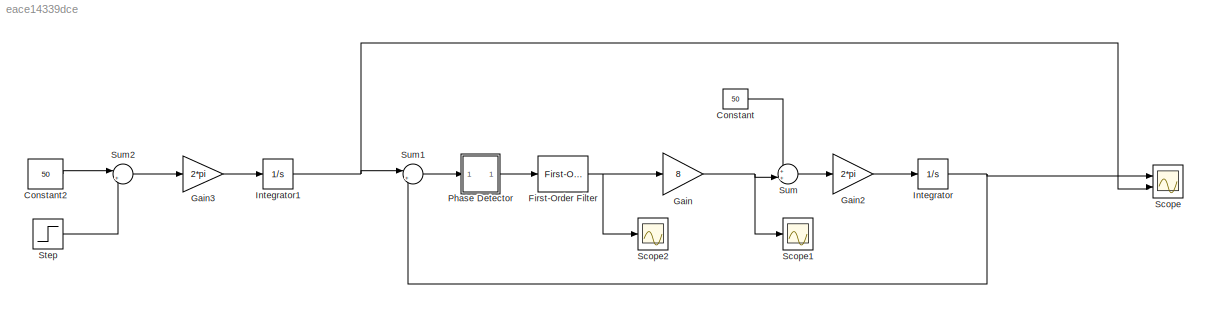
MODEL slx_eace14339dce
KIND model
CONFIG AbsTol = auto
CONFIG EnableMultiTasking = off
CONFIG FixedStep = auto
CONFIG MaxStep = auto
CONFIG MinStep = auto
CONFIG RelTol = 1e-3
CONFIG SampleTimeConstraint = Unconstrained
CONFIG SolverName = VariableStepAuto
CONFIG StartTime = 0.0
CONFIG StopTime = 10
BLOCK [Constant] Constant
  Value = 50
BLOCK [Constant] Constant2
  Value = 50
BLOCK [Reference] First-Order Filter  REF=spsFirstOrderFilterLib/First-Order
Filter
  Ports = [1, 1]
  SourceBlock = spsFirstOrderFilterLib/First-Order\nFilter
  SourceProductBaseCode = PS
  SourceType = First-Order Filter
BLOCK [Gain] Gain
  Gain = 8
BLOCK [Gain] Gain2
  Gain = 2*pi
BLOCK [Gain] Gain3
  Gain = 2*pi
BLOCK [Integrator] Integrator
  Ports = [1, 1]
BLOCK [Integrator] Integrator1
  Ports = [1, 1]
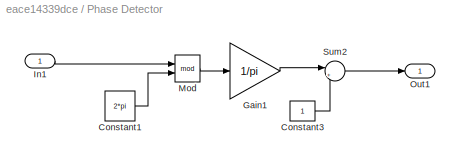
BLOCK [SubSystem] Phase Detector
  Ports = [1, 1]
  RequestExecContextInheritance = off
BLOCK [Constant] Phase Detector/Constant1
  Value = 2*pi
BLOCK [Constant] Phase Detector/Constant3
BLOCK [Gain] Phase Detector/Gain1
  Gain = 1/pi
BLOCK [Inport] Phase Detector/In1
BLOCK [Math] Phase Detector/Mod
  Operator = mod
  Ports = [2, 1]
BLOCK [Outport] Phase Detector/Out1
BLOCK [Sum] Phase Detector/Sum2
  Inputs = |+-
  Ports = [2, 1]
BLOCK [Scope] Scope
  Floating = off
  NumInputPorts = 2
  Ports = [2]
  ScopeSpecificationString = Simulink.scopes.TimeScopeBlockCfg('CurrentConfiguration', extmgr.ConfigurationSet(extmgr.Configuration('Core','General UI',true),extmgr.Configuration('Core','Source UI',true),extmgr.Configuration('Sources','WiredSimulink',true),extmgr.Configuration('Visuals','Time Domain',true,'SerializedDisplays',{struct('MinYLimReal','2668.2067','MaxYLimReal','2713.53792','YLabelReal','','MinYLimMag','2668.2067'...<+1408ch>
BLOCK [Scope] Scope1
  Floating = off
  NumInputPorts = 1
  Ports = [1]
  ScopeSpecificationString = Simulink.scopes.TimeScopeBlockCfg('CurrentConfiguration', extmgr.ConfigurationSet(extmgr.Configuration('Core','General UI',true),extmgr.Configuration('Core','Source UI',true),extmgr.Configuration('Sources','WiredSimulink',true,'DataLoggingVariableName','ScopeData1'),extmgr.Configuration('Visuals','Time Domain',true,'SerializedDisplays',{struct('MinYLimReal','-5.56517','MaxYLimReal','0.91486','YLab...<+1419ch>
BLOCK [Scope] Scope2
  Floating = off
  NumInputPorts = 1
  Ports = [1]
  ScopeSpecificationString = Simulink.scopes.TimeScopeBlockCfg('CurrentConfiguration', extmgr.ConfigurationSet(extmgr.Configuration('Core','General UI',true),extmgr.Configuration('Core','Source UI',true),extmgr.Configuration('Sources','WiredSimulink',true,'DataLoggingVariableName','ScopeData2'),extmgr.Configuration('Visuals','Time Domain',true,'SerializedDisplays',{struct('MinYLimReal','-0.69565','MaxYLimReal','0.11436','YLab...<+1430ch>
BLOCK [Step] Step
  After = -2
  SampleTime = 0
BLOCK [Sum] Sum
  Inputs = ++|
  Ports = [2, 1]
BLOCK [Sum] Sum1
  Inputs = |+-
  Ports = [2, 1]
BLOCK [Sum] Sum2
  Inputs = |++
  Ports = [2, 1]
LINE Constant2:1 -> Sum2:1
LINE Constant:1 -> Sum:1
NET First-Order Filter:1 -> Gain:1, Scope2:1
LINE Gain2:1 -> Integrator:1
LINE Gain3:1 -> Integrator1:1
NET Gain:1 -> Scope1:1, Sum:2
NET Integrator1:1 -> Scope:2, Sum1:1
NET Integrator:1 -> Scope:1, Sum1:2
LINE Phase Detector/Constant1:1 -> Phase Detector/Mod:2
LINE Phase Detector/Constant3:1 -> Phase Detector/Sum2:2
LINE Phase Detector/Gain1:1 -> Phase Detector/Sum2:1
LINE Phase Detector/In1:1 -> Phase Detector/Mod:1
LINE Phase Detector/Mod:1 -> Phase Detector/Gain1:1
LINE Phase Detector/Sum2:1 -> Phase Detector/Out1:1
LINE Phase Detector:1 -> First-Order Filter:1
LINE Step:1 -> Sum2:2
LINE Sum1:1 -> Phase Detector:1
LINE Sum2:1 -> Gain3:1
LINE Sum:1 -> Gain2:1
note: NET lines group one-source signal fan-out (src -> all destinations, sorted); 1:1 wires keep LINE
